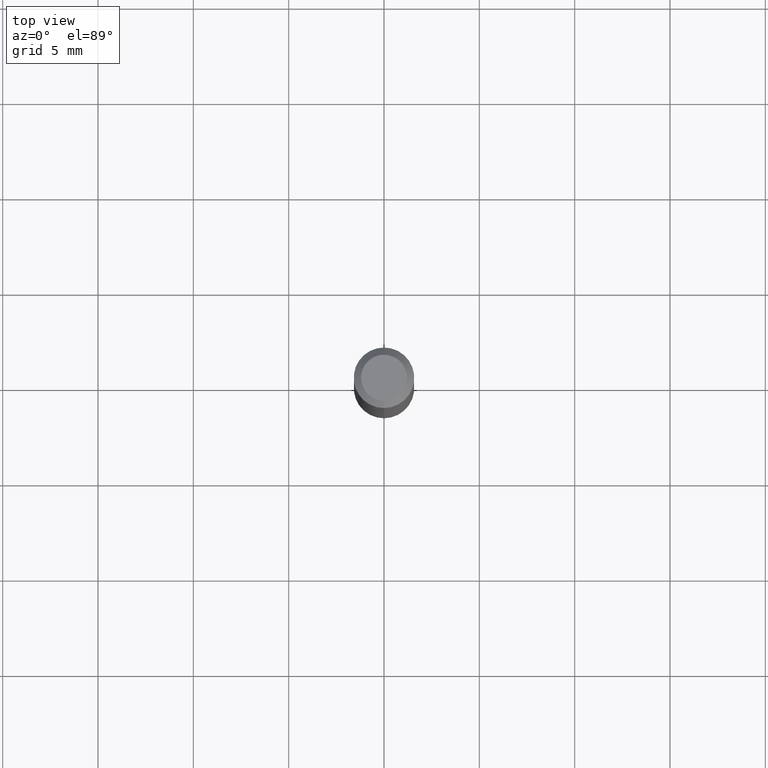
[diagram: clean part render]
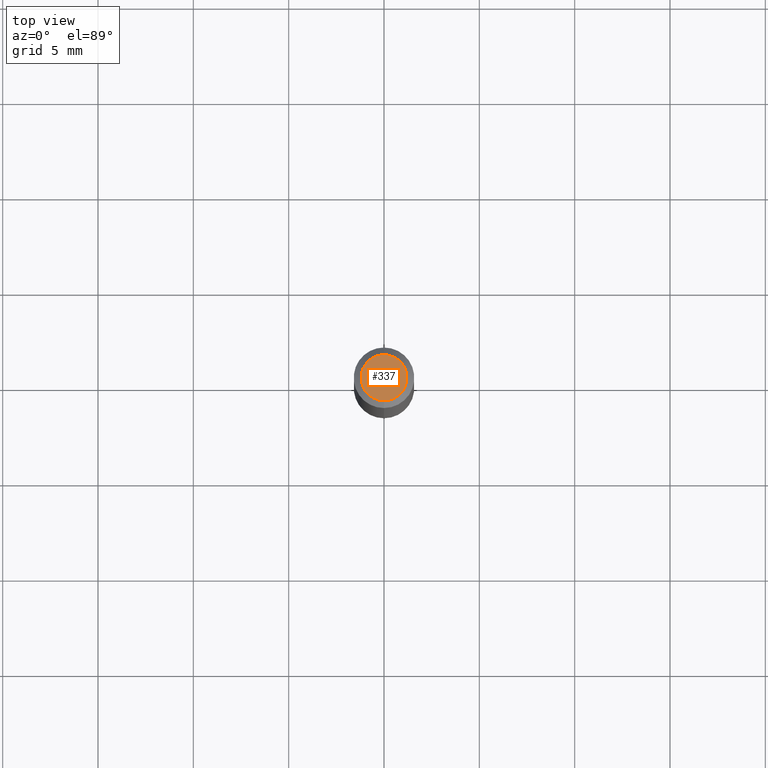
[diagram: same view with one face highlighted and labeled with its STEP entity id]
A machine part, top view. The second image highlights one B-rep face of the part: STEP entity #337.
In plain terms, the highlighted planar face has unit normal (0, -0, -1).
Its self-contained STEP definition (entity closure, byte-faithful):
#48 = CARTESIAN_POINT ( 'NONE',  ( 3.840629472727447874E-16, 0.04749999999999999362, -2.313455976474456035E-16 ) ) ;
#98 = ORIENTED_EDGE ( 'NONE', *, *, #137, .T. ) ;
#100 = DIRECTION ( 'NONE',  ( 6.982962677686265922E-15, 1.000000000000000000, -3.491504315897871274E-15 ) ) ;
#132 = ORIENTED_EDGE ( 'NONE', *, *, #492, .T. ) ;
#137 = EDGE_CURVE ( 'NONE', #495, #223, #242, .T. ) ;
#156 = PLANE ( 'NONE',  #348 ) ;
#179 = CARTESIAN_POINT ( 'NONE',  ( 1.601750592435163401E-45, -2.286905392231893458E-31, -6.549914264229672534E-17 ) ) ;
#223 = VERTEX_POINT ( 'NONE', #295 ) ;
#241 = CARTESIAN_POINT ( 'NONE',  ( 1.601750592435163401E-45, -2.286905392231893458E-31, -6.549914264229672534E-17 ) ) ;
#242 = CIRCLE ( 'NONE', #418, 0.04749999999999999362 ) ;
#250 = CARTESIAN_POINT ( 'NONE',  ( 3.316907271900976096E-16, 0.04749999999999999362, -1.985960263262972346E-16 ) ) ;
#264 = DIRECTION ( 'NONE',  ( -2.445452761393577128E-29, 3.491504315897871274E-15, 1.000000000000000000 ) ) ;
#295 = CARTESIAN_POINT ( 'NONE',  ( -3.773273898774340269E-16, -0.04749999999999999362, 1.003473123628521405E-16 ) ) ;
#317 = DIRECTION ( 'NONE',  ( -6.982962677686266711E-15, -1.000000000000000000, 3.491504315897871274E-15 ) ) ;
#337 = ADVANCED_FACE ( 'NONE', ( #430 ), #156, .F. ) ;
#348 = AXIS2_PLACEMENT_3D ( 'NONE', #250, #403, #100 ) ;
#364 = DIRECTION ( 'NONE',  ( -6.982962677686266711E-15, -1.000000000000000000, 3.491504315897871274E-15 ) ) ;
#398 = DIRECTION ( 'NONE',  ( -2.445452761393577128E-29, 3.491504315897871274E-15, 1.000000000000000000 ) ) ;
#403 = DIRECTION ( 'NONE',  ( 2.445452761393577128E-29, -3.491504315897871274E-15, -1.000000000000000000 ) ) ;
#418 = AXIS2_PLACEMENT_3D ( 'NONE', #179, #264, #317 ) ;
#430 = FACE_OUTER_BOUND ( 'NONE', #490, .T. ) ;
#442 = CIRCLE ( 'NONE', #494, 0.04749999999999999362 ) ;
#490 = EDGE_LOOP ( 'NONE', ( #98, #132 ) ) ;
#492 = EDGE_CURVE ( 'NONE', #223, #495, #442, .T. ) ;
#494 = AXIS2_PLACEMENT_3D ( 'NONE', #241, #398, #364 ) ;
#495 = VERTEX_POINT ( 'NONE', #48 ) ;